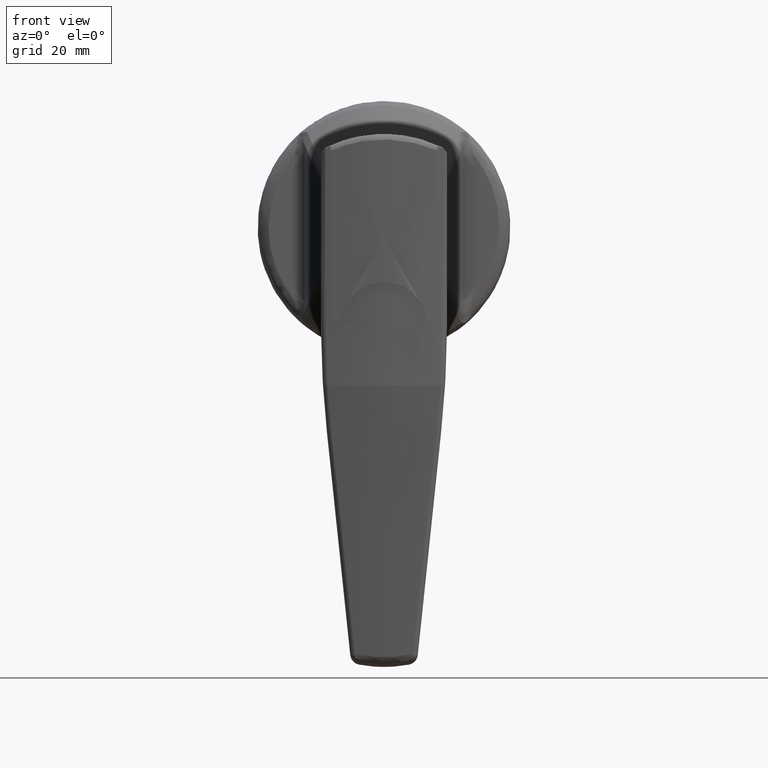
[diagram: clean part render]
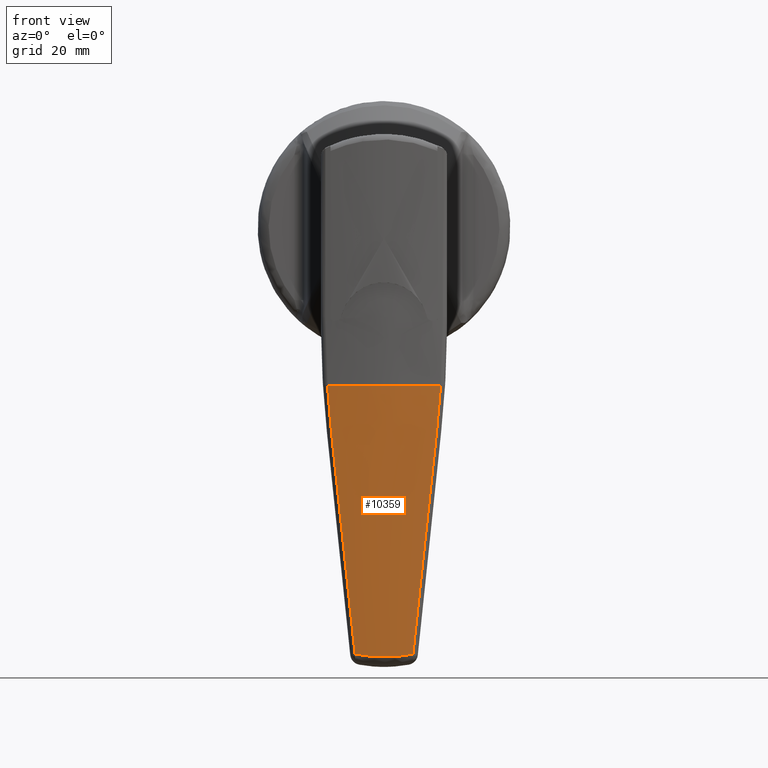
[diagram: same view with one face highlighted and labeled with its STEP entity id]
A machine part, front view. The second image highlights one B-rep face of the part: STEP entity #10359.
In plain terms, the highlighted face is a freeform B-spline surface patch.
Its self-contained STEP definition (entity closure, byte-faithful):
#7251=CARTESIAN_POINT('',(-38.040394911746851,5.262569912004130,-77.661544055874401));
#7252=VERTEX_POINT('',#7251);
#7253=CARTESIAN_POINT('',(-38.040394911746851,-5.262569912004159,-77.661544055874401));
#7254=VERTEX_POINT('',#7253);
#7255=CARTESIAN_POINT('',(-38.040394911746802,5.262569912004140,-77.661544055874401));
#7256=CARTESIAN_POINT('',(-38.094944349484528,4.396627784476762,-77.851686113251262));
#7257=CARTESIAN_POINT('',(-38.136508226954632,3.525067404579166,-77.993876247071086));
#7258=CARTESIAN_POINT('',(-38.192307806175492,1.770854416985110,-78.184076386287757));
#7259=CARTESIAN_POINT('',(-38.206547085954440,0.888124674333993,-78.232086066900990));
#7260=CARTESIAN_POINT('',(-38.206544631055877,-0.888354493027706,-78.232077760178498));
#7261=CARTESIAN_POINT('',(-38.192305375486967,-1.770949742823230,-78.184068131349989));
#7262=CARTESIAN_POINT('',(-38.136507017150940,-3.525086526374652,-77.993872092914799));
#7263=CARTESIAN_POINT('',(-38.094944336598452,-4.396627989036188,-77.851686068334459));
#7264=CARTESIAN_POINT('',(-38.040394911746802,-5.262569912004170,-77.661544055874401));
#7265=B_SPLINE_CURVE_WITH_KNOTS('',3,(#7255,#7256,#7257,#7258,#7259,#7260,#7261,#7262,#7263,#7264),.UNSPECIFIED.,.F.,.U.,(4,2,2,2,4),(0.0,0.250000000000000,0.500000000000000,0.750000000000000,1.0),.UNSPECIFIED.);
#7266=EDGE_CURVE('',#7252,#7254,#7265,.T.);
#8054=CARTESIAN_POINT('',(-43.095065097516503,-10.288011473755340,-28.731445780891299));
#8055=VERTEX_POINT('',#8054);
#8086=CARTESIAN_POINT('',(-43.095065097516503,10.288011473755320,-28.731445780891399));
#8087=VERTEX_POINT('',#8086);
#8101=CARTESIAN_POINT('',(-43.095065097516503,-10.288011473755340,-28.731445780891299));
#8102=CARTESIAN_POINT('',(-44.885435057690273,1.908196E-014,-28.837413335216311));
#8103=CARTESIAN_POINT('',(-43.095065097516503,10.288011473755320,-28.731445780891399));
#8111=(BOUNDED_CURVE()B_SPLINE_CURVE(2,(#8101,#8102,#8103),.UNSPECIFIED.,.F.,.U.)CURVE()GEOMETRIC_REPRESENTATION_ITEM()QUASI_UNIFORM_CURVE()RATIONAL_B_SPLINE_CURVE((1.0,0.985189888622141,1.0))REPRESENTATION_ITEM(''));
#8112=EDGE_CURVE('',#8055,#8087,#8111,.T.);
#8362=CARTESIAN_POINT('',(-42.238039142244901,9.579210432526370,-37.092543651671150));
#8363=VERTEX_POINT('',#8362);
#8377=CARTESIAN_POINT('',(-43.095065097516503,10.288011473755359,-28.731445780891399));
#8378=CARTESIAN_POINT('',(-42.799897446541252,10.111552297445691,-31.522575555672599));
#8379=CARTESIAN_POINT('',(-42.514947659635617,9.875311148400607,-34.309684740056930));
#8380=CARTESIAN_POINT('',(-42.238039142244901,9.579210432526351,-37.092543651671150));
#8381=QUASI_UNIFORM_CURVE('',3,(#8377,#8378,#8379,#8380),.UNSPECIFIED.,.F.,.U.);
#8382=EDGE_CURVE('',#8087,#8363,#8381,.T.);
#8443=CARTESIAN_POINT('',(-42.238039142244901,-9.579210432526381,-37.092543651671249));
#8444=VERTEX_POINT('',#8443);
#8468=CARTESIAN_POINT('',(-42.238039142244901,-9.579210432526381,-37.092543651671249));
#8469=CARTESIAN_POINT('',(-42.514947659635631,-9.875311148400645,-34.309684740056973));
#8470=CARTESIAN_POINT('',(-42.799897446541252,-10.111552297445670,-31.522575555672560));
#8471=CARTESIAN_POINT('',(-43.095065097516503,-10.288011473755340,-28.731445780891299));
#8472=QUASI_UNIFORM_CURVE('',3,(#8468,#8469,#8470,#8471),.UNSPECIFIED.,.F.,.U.);
#8473=EDGE_CURVE('',#8444,#8055,#8472,.T.);
#8649=CARTESIAN_POINT('',(-42.238039142244901,9.579210432526370,-37.092543651671150));
#8650=CARTESIAN_POINT('',(-40.228745358728069,7.430654897625610,-57.285425994906383));
#8651=CARTESIAN_POINT('',(-38.040394911746823,5.262569912004132,-77.661544055874430));
#8659=(BOUNDED_CURVE()B_SPLINE_CURVE(2,(#8649,#8650,#8651),.UNSPECIFIED.,.F.,.U.)CURVE()GEOMETRIC_REPRESENTATION_ITEM()QUASI_UNIFORM_CURVE()RATIONAL_B_SPLINE_CURVE((1.0,0.999342727148910,1.0))REPRESENTATION_ITEM(''));
#8660=EDGE_CURVE('',#8363,#7252,#8659,.T.);
#8686=CARTESIAN_POINT('',(-38.040394911746873,-5.262569912004184,-77.661544055874444));
#8687=CARTESIAN_POINT('',(-40.228745358728077,-7.430654897625606,-57.285425994906866));
#8688=CARTESIAN_POINT('',(-42.238039142244972,-9.579210432526391,-37.092543651671257));
#8696=(BOUNDED_CURVE()B_SPLINE_CURVE(2,(#8686,#8687,#8688),.UNSPECIFIED.,.F.,.U.)CURVE()GEOMETRIC_REPRESENTATION_ITEM()QUASI_UNIFORM_CURVE()RATIONAL_B_SPLINE_CURVE((1.0,0.999342727148501,1.0))REPRESENTATION_ITEM(''));
#8697=EDGE_CURVE('',#7254,#8444,#8696,.T.);
#10337=CARTESIAN_POINT('',(-43.062144150839536,11.296936232933927,-27.423309234518065));
#10338=CARTESIAN_POINT('',(-36.992656345278192,11.296936232933927,-79.374664276425733));
#10339=CARTESIAN_POINT('',(-45.213516695617251,-0.001345022825565,-27.674654544283598));
#10340=CARTESIAN_POINT('',(-39.144028890055914,-0.001345022825565,-79.626009586191259));
#10341=CARTESIAN_POINT('',(-43.061650027261159,-11.299530893988612,-27.423251505955804));
#10342=CARTESIAN_POINT('',(-36.992162221699850,-11.299530893988612,-79.374606547863451));
#10350=(BOUNDED_SURFACE()B_SPLINE_SURFACE(1,2,((#10337,#10339,#10341),(#10338,#10340,#10342)),.UNSPECIFIED.,.F.,.F.,.U.)B_SPLINE_SURFACE_WITH_KNOTS((2,2),(3,3),(0.0,52.304703162451872),(0.0,22.800397113671931),.UNSPECIFIED.)GEOMETRIC_REPRESENTATION_ITEM()RATIONAL_B_SPLINE_SURFACE(((0.998460209570932,0.979279257773243,0.995775338753416),(0.998460209570932,0.979279257773243,0.995775338753416)))REPRESENTATION_ITEM('')SURFACE());
#10351=ORIENTED_EDGE('',*,*,#8660,.T.);
#10352=ORIENTED_EDGE('',*,*,#7266,.T.);
#10353=ORIENTED_EDGE('',*,*,#8697,.T.);
#10354=ORIENTED_EDGE('',*,*,#8473,.T.);
#10355=ORIENTED_EDGE('',*,*,#8112,.T.);
#10356=ORIENTED_EDGE('',*,*,#8382,.T.);
#10357=EDGE_LOOP('',(#10351,#10352,#10353,#10354,#10355,#10356));
#10358=FACE_OUTER_BOUND('',#10357,.T.);
#10359=ADVANCED_FACE('',(#10358),#10350,.T.);